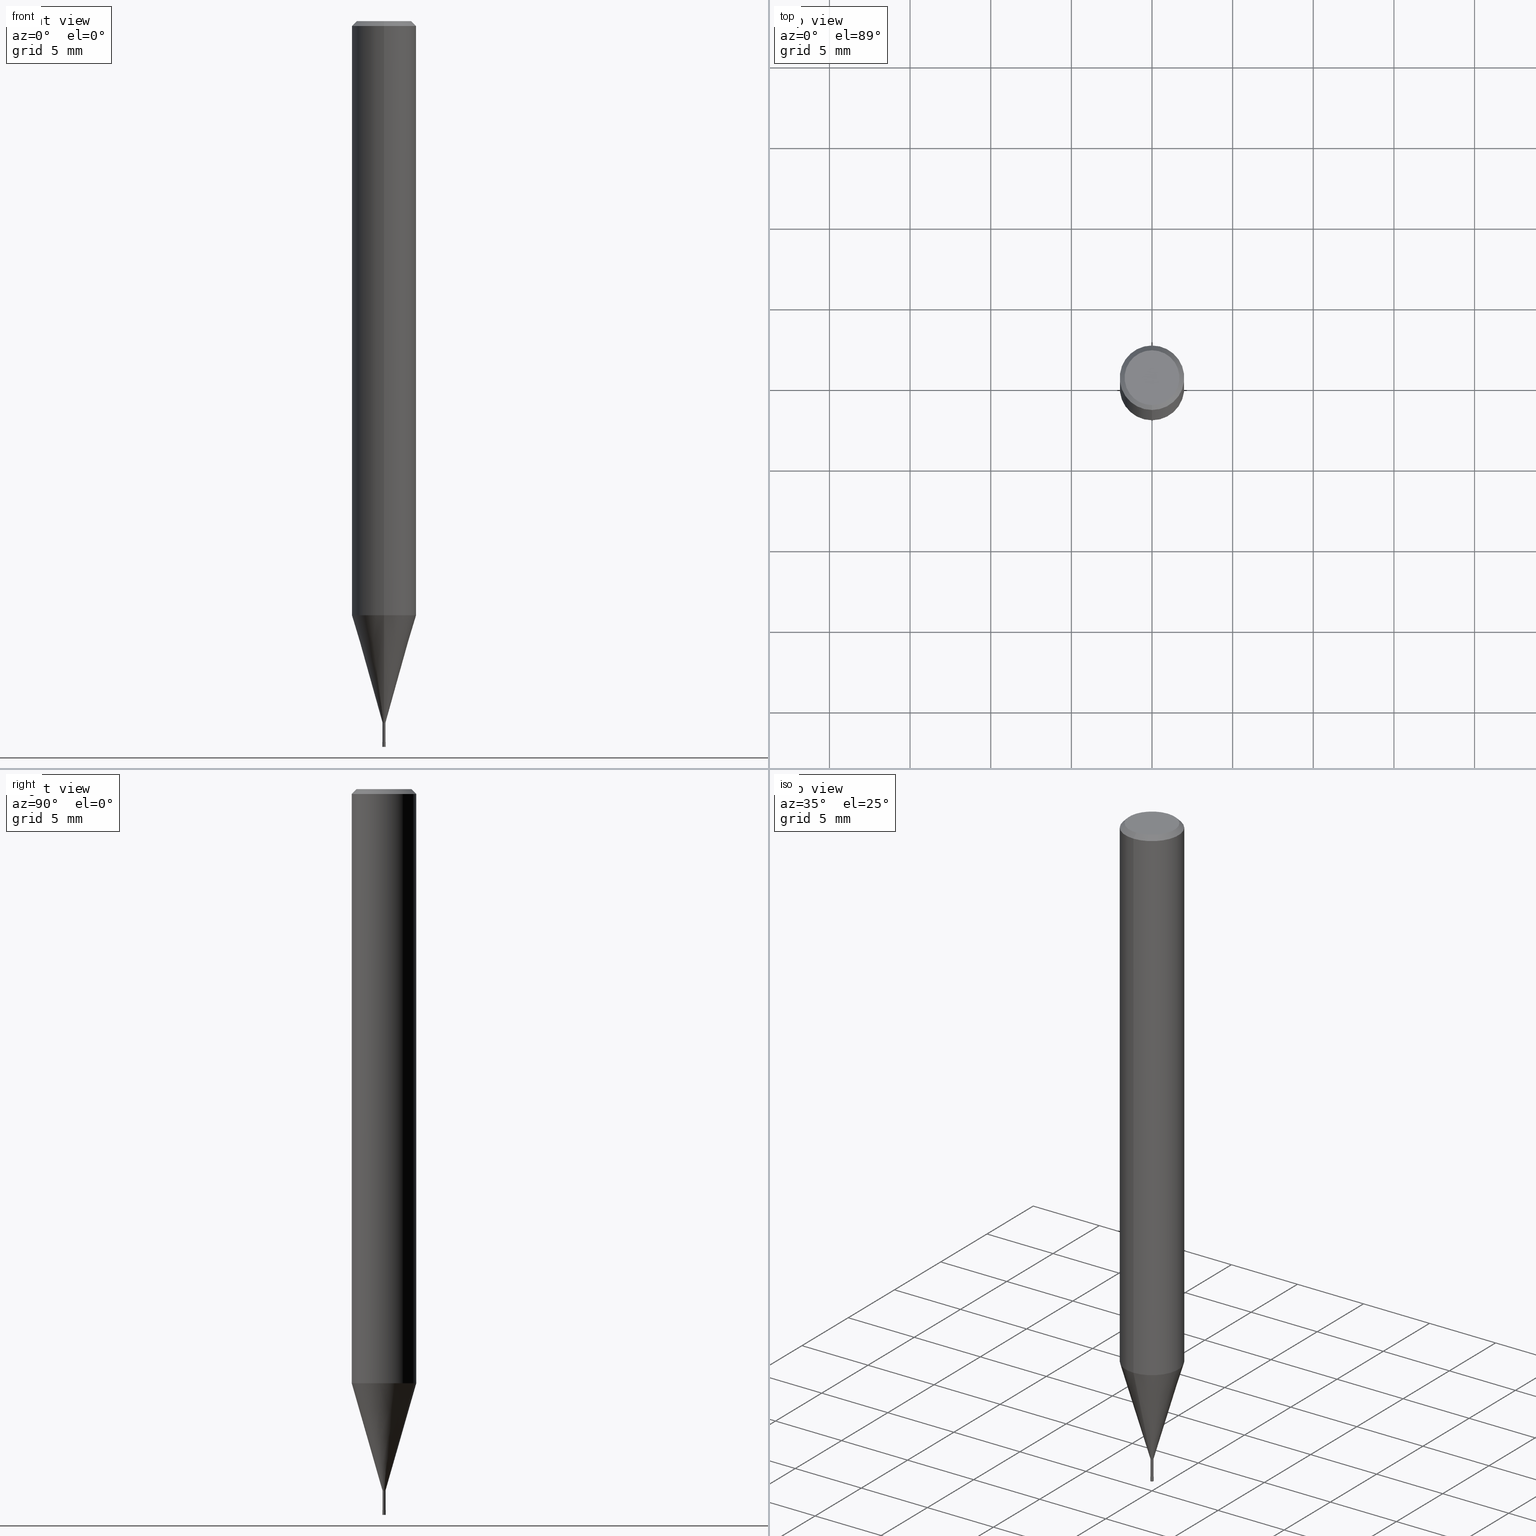
[diagram: canonical four-view strip — front | top / right | iso, engineering-drawing reading convention]
A machine part, canonical four-view strip (front | top / right | iso — engineering-drawing reading convention). The complete STEP part file that produces these views, byte-faithful:
ISO-10303-21;
HEADER;
FILE_DESCRIPTION(('no description'),'unknown implementation level');
FILE_NAME('HLS2002-015-Huellk.stp','  ',('CIMSOURCE GmbH'),('CADClick - KiM GmbH - www.kimweb.de'),'unknown preprocess','ACIS','unknown authorization');
FILE_SCHEMA(('automotive_design'));
ENDSEC;
DATA;
#1=MECHANICAL_DESIGN_GEOMETRIC_PRESENTATION_REPRESENTATION(' ',(#14,#15,#16,#17,#18,#19,#20,#21,#22,#23,#24,#25,#26,#27,#28,#29,#30,#31,#32,#33,#34,#35,#36,#37,#38,#39,#40,#41,#42,#43,#44,#45,#46,#47,#48,#49,#50,#51,#52,#53,#54,#55,#56,#57,#58,#59,#60,#61,#62,#63,#64,#65,#66,#67,#68,#69,#70,#71,#72),#10);
#2=PRODUCT_DEFINITION_CONTEXT('',#73,'design');
#3=APPLICATION_PROTOCOL_DEFINITION('INTERNATIONAL STANDARD','automotive_design',1994,#73);
#4=PRODUCT_CATEGORY_RELATIONSHIP('NONE','NONE',#74,#75);
#5=SHAPE_DEFINITION_REPRESENTATION(#76,#77);
#6=PRODUCT_DEFINITION_CONTEXT('',#78,'design');
#7=APPLICATION_PROTOCOL_DEFINITION('INTERNATIONAL STANDARD','automotive_design',1994,#78);
#8=PRODUCT_CATEGORY_RELATIONSHIP('NONE','NONE',#79,#80);
#9=SHAPE_DEFINITION_REPRESENTATION(#81,#82);
#10= (GEOMETRIC_REPRESENTATION_CONTEXT(3)GLOBAL_UNCERTAINTY_ASSIGNED_CONTEXT((#85))GLOBAL_UNIT_ASSIGNED_CONTEXT((#87,#88,#89))REPRESENTATION_CONTEXT('NONE','WORKSPACE'));
#14=STYLED_ITEM('',(#91),#92);
#15=STYLED_ITEM('',(#93),#94);
#16=STYLED_ITEM('',(#95),#96);
#17=STYLED_ITEM('',(#97),#98);
#18=STYLED_ITEM('',(#99),#100);
#19=STYLED_ITEM('',(#101),#102);
#20=STYLED_ITEM('',(#103),#104);
#21=STYLED_ITEM('',(#105),#106);
#22=STYLED_ITEM('',(#107),#108);
#23=STYLED_ITEM('',(#109),#110);
#24=STYLED_ITEM('',(#111),#112);
#25=STYLED_ITEM('',(#113),#114);
#26=STYLED_ITEM('',(#115),#116);
#27=STYLED_ITEM('',(#117),#118);
#28=STYLED_ITEM('',(#119),#120);
#29=STYLED_ITEM('',(#121),#122);
#30=STYLED_ITEM('',(#123),#124);
#31=STYLED_ITEM('',(#125),#126);
#32=STYLED_ITEM('',(#127),#128);
#33=STYLED_ITEM('',(#129),#130);
#34=STYLED_ITEM('',(#131),#132);
#35=STYLED_ITEM('',(#133),#134);
#36=STYLED_ITEM('',(#135),#136);
#37=STYLED_ITEM('',(#137),#138);
#38=STYLED_ITEM('',(#139),#140);
#39=STYLED_ITEM('',(#141),#142);
#40=STYLED_ITEM('',(#143),#144);
#41=STYLED_ITEM('',(#145),#146);
#42=STYLED_ITEM('',(#147),#148);
#43=STYLED_ITEM('',(#149),#150);
#44=STYLED_ITEM('',(#151),#152);
#45=STYLED_ITEM('',(#153),#154);
#46=STYLED_ITEM('',(#155),#156);
#47=STYLED_ITEM('',(#157),#158);
#48=STYLED_ITEM('',(#159),#160);
#49=STYLED_ITEM('',(#161),#162);
#50=STYLED_ITEM('',(#163),#164);
#51=STYLED_ITEM('',(#165),#166);
#52=STYLED_ITEM('',(#167),#168);
#53=STYLED_ITEM('',(#169),#170);
#54=STYLED_ITEM('',(#171),#172);
#55=STYLED_ITEM('',(#173),#174);
#56=STYLED_ITEM('',(#175),#176);
#57=STYLED_ITEM('',(#177),#178);
#58=STYLED_ITEM('',(#179),#180);
#59=STYLED_ITEM('',(#181),#182);
#60=STYLED_ITEM('',(#183),#184);
#61=STYLED_ITEM('',(#185),#186);
#62=STYLED_ITEM('',(#187),#188);
#63=STYLED_ITEM('',(#189),#190);
#64=STYLED_ITEM('',(#191),#192);
#65=STYLED_ITEM('',(#193),#194);
#66=STYLED_ITEM('',(#195),#196);
#67=STYLED_ITEM('',(#197),#198);
#68=STYLED_ITEM('',(#199),#200);
#69=STYLED_ITEM('',(#201),#202);
#70=STYLED_ITEM('',(#203),#204);
#71=STYLED_ITEM('',(#205),#206);
#72=STYLED_ITEM('',(#207),#208);
#73=APPLICATION_CONTEXT(' ');
#74=PRODUCT_CATEGORY('part','NONE');
#75=PRODUCT_RELATED_PRODUCT_CATEGORY('detail',' ',(#209));
#76=PRODUCT_DEFINITION_SHAPE('NONE','NONE',#210);
#77=ADVANCED_BREP_SHAPE_REPRESENTATION('1',(#136,#211),#10);
#78=APPLICATION_CONTEXT(' ');
#79=PRODUCT_CATEGORY('part','NONE');
#80=PRODUCT_RELATED_PRODUCT_CATEGORY('detail',' ',(#212));
#81=PRODUCT_DEFINITION_SHAPE('NONE','NONE',#213);
#82=ADVANCED_BREP_SHAPE_REPRESENTATION('2',(#200,#214),#10);
#85=UNCERTAINTY_MEASURE_WITH_UNIT(LENGTH_MEASURE(1.0E-006),#87,'','');
#87= (CONVERSION_BASED_UNIT('MILLIMETRE',#217)LENGTH_UNIT()NAMED_UNIT(#220));
#88= (NAMED_UNIT(#222)PLANE_ANGLE_UNIT()SI_UNIT($,.RADIAN.));
#89= (NAMED_UNIT(#222)SOLID_ANGLE_UNIT()SI_UNIT($,.STERADIAN.));
#91=PRESENTATION_STYLE_ASSIGNMENT((#228));
#92=EDGE_CURVE('',#146,#114,#229,.T.);
#93=PRESENTATION_STYLE_ASSIGNMENT((#230));
#94=EDGE_CURVE('',#138,#204,#231,.T.);
#95=PRESENTATION_STYLE_ASSIGNMENT((#232));
#96=EDGE_CURVE('',#184,#102,#233,.T.);
#97=PRESENTATION_STYLE_ASSIGNMENT((#234));
#98=ADVANCED_FACE('',(#235,#236),#237,.T.);
#99=PRESENTATION_STYLE_ASSIGNMENT((#238));
#100=EDGE_CURVE('',#156,#130,#239,.T.);
#101=PRESENTATION_STYLE_ASSIGNMENT((#240));
#102=VERTEX_POINT('',#241);
#103=PRESENTATION_STYLE_ASSIGNMENT((#242));
#104=EDGE_CURVE('',#156,#178,#243,.T.);
#105=PRESENTATION_STYLE_ASSIGNMENT((#244));
#106=EDGE_CURVE('',#204,#138,#245,.T.);
#107=PRESENTATION_STYLE_ASSIGNMENT((#246));
#108=ADVANCED_FACE('',(#247),#248,.T.);
#109=PRESENTATION_STYLE_ASSIGNMENT((#249));
#110=EDGE_CURVE('',#138,#126,#250,.T.);
#111=PRESENTATION_STYLE_ASSIGNMENT((#251));
#112=EDGE_CURVE('',#168,#114,#252,.T.);
#113=PRESENTATION_STYLE_ASSIGNMENT((#253));
#114=VERTEX_POINT('',#254);
#115=PRESENTATION_STYLE_ASSIGNMENT((#255));
#116=EDGE_CURVE('',#170,#150,#256,.T.);
#117=PRESENTATION_STYLE_ASSIGNMENT((#257));
#118=ADVANCED_FACE('',(#258),#259,.T.);
#119=PRESENTATION_STYLE_ASSIGNMENT((#260));
#120=EDGE_CURVE('',#208,#178,#261,.T.);
#121=PRESENTATION_STYLE_ASSIGNMENT((#262));
#122=ADVANCED_FACE('',(#263),#264,.T.);
#123=PRESENTATION_STYLE_ASSIGNMENT((#265));
#124=EDGE_CURVE('',#150,#170,#266,.T.);
#125=PRESENTATION_STYLE_ASSIGNMENT((#267));
#126=VERTEX_POINT('',#268);
#127=PRESENTATION_STYLE_ASSIGNMENT((#269));
#128=EDGE_CURVE('',#146,#202,#270,.T.);
#129=PRESENTATION_STYLE_ASSIGNMENT((#271));
#130=VERTEX_POINT('',#272);
#131=PRESENTATION_STYLE_ASSIGNMENT((#273));
#132=EDGE_CURVE('',#130,#156,#274,.T.);
#133=PRESENTATION_STYLE_ASSIGNMENT((#275));
#134=EDGE_CURVE('',#114,#146,#276,.T.);
#135=PRESENTATION_STYLE_ASSIGNMENT((#277));
#136=MANIFOLD_SOLID_BREP('1',#278);
#137=PRESENTATION_STYLE_ASSIGNMENT((#279));
#138=VERTEX_POINT('',#280);
#139=PRESENTATION_STYLE_ASSIGNMENT((#281));
#140=ADVANCED_FACE('',(#282),#283,.T.);
#141=PRESENTATION_STYLE_ASSIGNMENT((#284));
#142=ADVANCED_FACE('',(#285),#286,.T.);
#143=PRESENTATION_STYLE_ASSIGNMENT((#287));
#144=ADVANCED_FACE('',(#288),#289,.T.);
#145=PRESENTATION_STYLE_ASSIGNMENT((#290));
#146=VERTEX_POINT('',#291);
#147=PRESENTATION_STYLE_ASSIGNMENT((#292));
#148=ADVANCED_FACE('',(#293),#294,.T.);
#149=PRESENTATION_STYLE_ASSIGNMENT((#295));
#150=VERTEX_POINT('',#296);
#151=PRESENTATION_STYLE_ASSIGNMENT((#297));
#152=EDGE_CURVE('',#194,#126,#298,.T.);
#153=PRESENTATION_STYLE_ASSIGNMENT((#299));
#154=EDGE_CURVE('',#130,#170,#300,.T.);
#155=PRESENTATION_STYLE_ASSIGNMENT((#301));
#156=VERTEX_POINT('',#302);
#157=PRESENTATION_STYLE_ASSIGNMENT((#303));
#158=EDGE_CURVE('',#168,#202,#304,.T.);
#159=PRESENTATION_STYLE_ASSIGNMENT((#305));
#160=ADVANCED_FACE('',(#306),#307,.T.);
#161=PRESENTATION_STYLE_ASSIGNMENT((#308));
#162=EDGE_CURVE('',#102,#184,#309,.T.);
#163=PRESENTATION_STYLE_ASSIGNMENT((#310));
#164=EDGE_CURVE('',#204,#102,#311,.T.);
#165=PRESENTATION_STYLE_ASSIGNMENT((#312));
#166=ADVANCED_FACE('',(#313),#314,.T.);
#167=PRESENTATION_STYLE_ASSIGNMENT((#315));
#168=VERTEX_POINT('',#316);
#169=PRESENTATION_STYLE_ASSIGNMENT((#317));
#170=VERTEX_POINT('',#318);
#171=PRESENTATION_STYLE_ASSIGNMENT((#319));
#172=EDGE_CURVE('',#126,#194,#320,.T.);
#173=PRESENTATION_STYLE_ASSIGNMENT((#321));
#174=ADVANCED_FACE('',(#322),#323,.T.);
#175=PRESENTATION_STYLE_ASSIGNMENT((#324));
#176=EDGE_CURVE('',#202,#168,#325,.T.);
#177=PRESENTATION_STYLE_ASSIGNMENT((#326));
#178=VERTEX_POINT('',#327);
#179=PRESENTATION_STYLE_ASSIGNMENT((#328));
#180=ADVANCED_FACE('',(#329),#330,.T.);
#181=PRESENTATION_STYLE_ASSIGNMENT((#331));
#182=EDGE_CURVE('',#194,#204,#332,.T.);
#183=PRESENTATION_STYLE_ASSIGNMENT((#333));
#184=VERTEX_POINT('',#334);
#185=PRESENTATION_STYLE_ASSIGNMENT((#335));
#186=ADVANCED_FACE('',(#336),#337,.T.);
#187=PRESENTATION_STYLE_ASSIGNMENT((#338));
#188=ADVANCED_FACE('',(#339),#340,.T.);
#189=PRESENTATION_STYLE_ASSIGNMENT((#341));
#190=EDGE_CURVE('',#184,#138,#342,.T.);
#191=PRESENTATION_STYLE_ASSIGNMENT((#343));
#192=EDGE_CURVE('',#178,#208,#344,.T.);
#193=PRESENTATION_STYLE_ASSIGNMENT((#345));
#194=VERTEX_POINT('',#346);
#195=PRESENTATION_STYLE_ASSIGNMENT((#347));
#196=EDGE_CURVE('',#208,#130,#348,.T.);
#197=PRESENTATION_STYLE_ASSIGNMENT((#349));
#198=ADVANCED_FACE('',(#350),#351,.T.);
#199=PRESENTATION_STYLE_ASSIGNMENT((#352));
#200=MANIFOLD_SOLID_BREP('2',#353);
#201=PRESENTATION_STYLE_ASSIGNMENT((#354));
#202=VERTEX_POINT('',#355);
#203=PRESENTATION_STYLE_ASSIGNMENT((#356));
#204=VERTEX_POINT('',#357);
#205=PRESENTATION_STYLE_ASSIGNMENT((#358));
#206=EDGE_CURVE('',#150,#156,#359,.T.);
#207=PRESENTATION_STYLE_ASSIGNMENT((#360));
#208=VERTEX_POINT('',#361);
#209=PRODUCT('1','1','PART-1-DESC',(#362));
#210=PRODUCT_DEFINITION('NONE','NONE',#363,#2);
#211=AXIS2_PLACEMENT_3D('',#364,#365,#366);
#212=PRODUCT('2','2','PART-2-DESC',(#367));
#213=PRODUCT_DEFINITION('NONE','NONE',#368,#6);
#214=AXIS2_PLACEMENT_3D('',#369,#370,#371);
#217=LENGTH_MEASURE_WITH_UNIT(LENGTH_MEASURE(1.0),#372);
#220=DIMENSIONAL_EXPONENTS(1.0,0.0,0.0,0.0,0.0,0.0,0.0);
#222=DIMENSIONAL_EXPONENTS(0.0,0.0,0.0,0.0,0.0,0.0,0.0);
#228=CURVE_STYLE('',#373,POSITIVE_LENGTH_MEASURE(1.0E-006),#374);
#229=CIRCLE('',#375,0.1);
#230=CURVE_STYLE('',#376,POSITIVE_LENGTH_MEASURE(1.0E-006),#377);
#231=CIRCLE('',#378,2.0);
#232=CURVE_STYLE('',#379,POSITIVE_LENGTH_MEASURE(1.0E-006),#380);
#233=CIRCLE('',#381,1.7);
#234=SURFACE_STYLE_USAGE(.BOTH.,#382);
#235=FACE_OUTER_BOUND('',#383,.T.);
#236=FACE_BOUND('',#384,.T.);
#237=PLANE('',#385);
#238=CURVE_STYLE('',#386,POSITIVE_LENGTH_MEASURE(1.0E-006),#387);
#239=CIRCLE('',#388,0.08995);
#240=POINT_STYLE(' ',#389,POSITIVE_LENGTH_MEASURE(1.0E-006),#390);
#241=CARTESIAN_POINT('',(2.08183080149804E-016,-1.7,0.0));
#242=CURVE_STYLE('',#391,POSITIVE_LENGTH_MEASURE(1.0E-006),#392);
#243=LINE('',#393,#394);
#244=CURVE_STYLE('',#395,POSITIVE_LENGTH_MEASURE(1.0E-006),#396);
#245=CIRCLE('',#397,2.0);
#246=SURFACE_STYLE_USAGE(.BOTH.,#398);
#247=FACE_OUTER_BOUND('',#399,.T.);
#248=PLANE('',#400);
#249=CURVE_STYLE('',#401,POSITIVE_LENGTH_MEASURE(1.0E-006),#402);
#250=LINE('',#403,#404);
#251=CURVE_STYLE('',#405,POSITIVE_LENGTH_MEASURE(1.0E-006),#406);
#252=LINE('',#407,#408);
#253=POINT_STYLE(' ',#409,POSITIVE_LENGTH_MEASURE(1.0E-006),#410);
#254=CARTESIAN_POINT('',(0.0,0.1,-45.0));
#255=CURVE_STYLE('',#411,POSITIVE_LENGTH_MEASURE(1.0E-006),#412);
#256=CIRCLE('',#413,0.08995);
#257=SURFACE_STYLE_USAGE(.BOTH.,#414);
#258=FACE_OUTER_BOUND('',#415,.T.);
#259=CONICAL_SURFACE('',#416,1.04495,0.279251152364767);
#260=CURVE_STYLE('',#417,POSITIVE_LENGTH_MEASURE(1.0E-006),#418);
#261=CIRCLE('',#419,1.99995);
#262=SURFACE_STYLE_USAGE(.BOTH.,#420);
#263=FACE_OUTER_BOUND('',#421,.T.);
#264=CONICAL_SURFACE('',#422,1.85,0.785398163397453);
#265=CURVE_STYLE('',#423,POSITIVE_LENGTH_MEASURE(1.0E-006),#424);
#266=CIRCLE('',#425,0.08995);
#267=POINT_STYLE(' ',#426,POSITIVE_LENGTH_MEASURE(1.0E-006),#427);
#268=CARTESIAN_POINT('',(0.0,2.0,-36.839));
#269=CURVE_STYLE('',#428,POSITIVE_LENGTH_MEASURE(1.0E-006),#429);
#270=LINE('',#430,#431);
#271=POINT_STYLE(' ',#432,POSITIVE_LENGTH_MEASURE(1.0E-006),#433);
#272=CARTESIAN_POINT('',(0.0,0.08995,-43.5));
#273=CURVE_STYLE('',#434,POSITIVE_LENGTH_MEASURE(1.0E-006),#435);
#274=CIRCLE('',#436,0.08995);
#275=CURVE_STYLE('',#437,POSITIVE_LENGTH_MEASURE(1.0E-006),#438);
#276=CIRCLE('',#439,0.1);
#277=SURFACE_STYLE_USAGE(.BOTH.,#440);
#278=CLOSED_SHELL('',(#142,#140,#188,#122,#98,#180,#160,#144,#118,#166,#198));
#279=POINT_STYLE(' ',#441,POSITIVE_LENGTH_MEASURE(1.0E-006),#442);
#280=CARTESIAN_POINT('',(0.0,2.0,-0.299999999999997));
#281=SURFACE_STYLE_USAGE(.BOTH.,#443);
#282=FACE_OUTER_BOUND('',#444,.T.);
#283=CONICAL_SURFACE('',#445,1.04495,0.279251152364767);
#284=SURFACE_STYLE_USAGE(.BOTH.,#446);
#285=FACE_OUTER_BOUND('',#447,.T.);
#286=CYLINDRICAL_SURFACE('',#448,0.08995);
#287=SURFACE_STYLE_USAGE(.BOTH.,#449);
#288=FACE_OUTER_BOUND('',#450,.T.);
#289=CYLINDRICAL_SURFACE('',#451,2.0);
#290=POINT_STYLE(' ',#452,POSITIVE_LENGTH_MEASURE(1.0E-006),#453);
#291=CARTESIAN_POINT('',(1.22460635382238E-017,-0.1,-45.0));
#292=SURFACE_STYLE_USAGE(.BOTH.,#454);
#293=FACE_OUTER_BOUND('',#455,.T.);
#294=PLANE('',#456);
#295=POINT_STYLE(' ',#457,POSITIVE_LENGTH_MEASURE(1.0E-006),#458);
#296=CARTESIAN_POINT('',(1.10153341526323E-017,-0.08995,-44.7));
#297=CURVE_STYLE('',#459,POSITIVE_LENGTH_MEASURE(1.0E-006),#460);
#298=CIRCLE('',#461,2.0);
#299=CURVE_STYLE('',#462,POSITIVE_LENGTH_MEASURE(1.0E-006),#463);
#300=LINE('',#464,#465);
#301=POINT_STYLE(' ',#466,POSITIVE_LENGTH_MEASURE(1.0E-006),#467);
#302=CARTESIAN_POINT('',(1.10153341526323E-017,-0.08995,-43.5));
#303=CURVE_STYLE('',#468,POSITIVE_LENGTH_MEASURE(1.0E-006),#469);
#304=CIRCLE('',#470,0.0999);
#305=SURFACE_STYLE_USAGE(.BOTH.,#471);
#306=FACE_OUTER_BOUND('',#472,.T.);
#307=CONICAL_SURFACE('',#473,1.85,0.785398163397453);
#308=CURVE_STYLE('',#474,POSITIVE_LENGTH_MEASURE(1.0E-006),#475);
#309=CIRCLE('',#476,1.7);
#310=CURVE_STYLE('',#477,POSITIVE_LENGTH_MEASURE(1.0E-006),#478);
#311=LINE('',#479,#480);
#312=SURFACE_STYLE_USAGE(.BOTH.,#481);
#313=FACE_OUTER_BOUND('',#482,.T.);
#314=CYLINDRICAL_SURFACE('',#483,0.08995);
#315=POINT_STYLE(' ',#484,POSITIVE_LENGTH_MEASURE(1.0E-006),#485);
#316=CARTESIAN_POINT('',(0.0,0.0999,-44.7));
#317=POINT_STYLE(' ',#486,POSITIVE_LENGTH_MEASURE(1.0E-006),#487);
#318=CARTESIAN_POINT('',(0.0,0.08995,-44.7));
#319=CURVE_STYLE('',#488,POSITIVE_LENGTH_MEASURE(1.0E-006),#489);
#320=CIRCLE('',#490,2.0);
#321=SURFACE_STYLE_USAGE(.BOTH.,#491);
#322=FACE_OUTER_BOUND('',#492,.T.);
#323=CONICAL_SURFACE('',#493,0.09995,0.000333333320987665);
#324=CURVE_STYLE('',#494,POSITIVE_LENGTH_MEASURE(1.0E-006),#495);
#325=CIRCLE('',#496,0.0999);
#326=POINT_STYLE(' ',#497,POSITIVE_LENGTH_MEASURE(1.0E-006),#498);
#327=CARTESIAN_POINT('',(2.44915147732706E-016,-1.99995,-36.839));
#328=SURFACE_STYLE_USAGE(.BOTH.,#499);
#329=FACE_OUTER_BOUND('',#500,.T.);
#330=PLANE('',#501);
#331=CURVE_STYLE('',#502,POSITIVE_LENGTH_MEASURE(1.0E-006),#503);
#332=LINE('',#504,#505);
#333=POINT_STYLE(' ',#506,POSITIVE_LENGTH_MEASURE(1.0E-006),#507);
#334=CARTESIAN_POINT('',(0.0,1.7,0.0));
#335=SURFACE_STYLE_USAGE(.BOTH.,#508);
#336=FACE_OUTER_BOUND('',#509,.T.);
#337=CONICAL_SURFACE('',#510,0.09995,0.000333333320987665);
#338=SURFACE_STYLE_USAGE(.BOTH.,#511);
#339=FACE_OUTER_BOUND('',#512,.T.);
#340=CYLINDRICAL_SURFACE('',#513,2.0);
#341=CURVE_STYLE('',#514,POSITIVE_LENGTH_MEASURE(1.0E-006),#515);
#342=LINE('',#516,#517);
#343=CURVE_STYLE('',#518,POSITIVE_LENGTH_MEASURE(1.0E-006),#519);
#344=CIRCLE('',#520,1.99995);
#345=POINT_STYLE(' ',#521,POSITIVE_LENGTH_MEASURE(1.0E-006),#522);
#346=CARTESIAN_POINT('',(2.44921270764475E-016,-2.0,-36.839));
#347=CURVE_STYLE('',#523,POSITIVE_LENGTH_MEASURE(1.0E-006),#524);
#348=LINE('',#525,#526);
#349=SURFACE_STYLE_USAGE(.BOTH.,#527);
#350=FACE_OUTER_BOUND('',#528,.T.);
#351=PLANE('',#529);
#352=SURFACE_STYLE_USAGE(.BOTH.,#530);
#353=CLOSED_SHELL('',(#186,#148,#174,#108));
#354=POINT_STYLE(' ',#531,POSITIVE_LENGTH_MEASURE(1.0E-006),#532);
#355=CARTESIAN_POINT('',(1.22338174746855E-017,-0.0999,-44.7));
#356=POINT_STYLE(' ',#533,POSITIVE_LENGTH_MEASURE(1.0E-006),#534);
#357=CARTESIAN_POINT('',(2.44921270764475E-016,-2.0,-0.299999999999997));
#358=CURVE_STYLE('',#535,POSITIVE_LENGTH_MEASURE(1.0E-006),#536);
#359=LINE('',#537,#538);
#360=POINT_STYLE(' ',#539,POSITIVE_LENGTH_MEASURE(1.0E-006),#540);
#361=CARTESIAN_POINT('',(0.0,1.99995,-36.839));
#362=PRODUCT_CONTEXT('',#73,'mechanical');
#363=PRODUCT_DEFINITION_FORMATION_WITH_SPECIFIED_SOURCE(' ','NONE',#209,.NOT_KNOWN.);
#364=CARTESIAN_POINT('',(0.0,0.0,0.0));
#365=DIRECTION('',(0.0,0.0,1.0));
#366=DIRECTION('',(1.0,0.0,0.0));
#367=PRODUCT_CONTEXT('',#78,'mechanical');
#368=PRODUCT_DEFINITION_FORMATION_WITH_SPECIFIED_SOURCE(' ','NONE',#212,.NOT_KNOWN.);
#369=CARTESIAN_POINT('',(0.0,0.0,0.0));
#370=DIRECTION('',(0.0,0.0,1.0));
#371=DIRECTION('',(1.0,0.0,0.0));
#372= (NAMED_UNIT(#220)LENGTH_UNIT()SI_UNIT(.MILLI.,.METRE.));
#373=DRAUGHTING_PRE_DEFINED_CURVE_FONT('continuous');
#374=COLOUR_RGB('',0.800000011920929,0.800000011920929,0.800000011920929);
#375=AXIS2_PLACEMENT_3D('',#542,#543,#544);
#376=DRAUGHTING_PRE_DEFINED_CURVE_FONT('continuous');
#377=COLOUR_RGB('',0.498039215803146,0.498039215803146,0.498039215803146);
#378=AXIS2_PLACEMENT_3D('',#545,#546,#547);
#379=DRAUGHTING_PRE_DEFINED_CURVE_FONT('continuous');
#380=COLOUR_RGB('',0.498039215803146,0.498039215803146,0.498039215803146);
#381=AXIS2_PLACEMENT_3D('',#548,#549,#550);
#382=SURFACE_SIDE_STYLE('',(#551));
#383=EDGE_LOOP('',(#552,#553));
#384=EDGE_LOOP('',(#554,#555));
#385=AXIS2_PLACEMENT_3D('',#556,#557,#558);
#386=DRAUGHTING_PRE_DEFINED_CURVE_FONT('continuous');
#387=COLOUR_RGB('',0.498039215803146,0.498039215803146,0.498039215803146);
#388=AXIS2_PLACEMENT_3D('',#559,#560,#561);
#389=PRE_DEFINED_MARKER('');
#390=COLOUR_RGB('',0.498039215803146,0.498039215803146,0.498039215803146);
#391=DRAUGHTING_PRE_DEFINED_CURVE_FONT('continuous');
#392=COLOUR_RGB('',0.498039215803146,0.498039215803146,0.498039215803146);
#393=CARTESIAN_POINT('',(1.27965240942669E-016,-1.04495,-40.1695));
#394=VECTOR('',#562,1.0);
#395=DRAUGHTING_PRE_DEFINED_CURVE_FONT('continuous');
#396=COLOUR_RGB('',0.498039215803146,0.498039215803146,0.498039215803146);
#397=AXIS2_PLACEMENT_3D('',#563,#564,#565);
#398=SURFACE_SIDE_STYLE('',(#566));
#399=EDGE_LOOP('',(#567,#568));
#400=AXIS2_PLACEMENT_3D('',#569,#570,#571);
#401=DRAUGHTING_PRE_DEFINED_CURVE_FONT('continuous');
#402=COLOUR_RGB('',0.498039215803146,0.498039215803146,0.498039215803146);
#403=CARTESIAN_POINT('',(-2.44921270764475E-016,2.0,-18.5695));
#404=VECTOR('',#572,1.0);
#405=DRAUGHTING_PRE_DEFINED_CURVE_FONT('continuous');
#406=COLOUR_RGB('',0.800000011920929,0.800000011920929,0.800000011920929);
#407=CARTESIAN_POINT('',(-1.22399405064547E-017,0.09995,-44.85));
#408=VECTOR('',#573,1.0);
#409=PRE_DEFINED_MARKER('');
#410=COLOUR_RGB('',0.800000011920929,0.800000011920929,0.800000011920929);
#411=DRAUGHTING_PRE_DEFINED_CURVE_FONT('continuous');
#412=COLOUR_RGB('',0.498039215803146,0.498039215803146,0.498039215803146);
#413=AXIS2_PLACEMENT_3D('',#574,#575,#576);
#414=SURFACE_SIDE_STYLE('',(#577));
#415=EDGE_LOOP('',(#578,#579,#580,#581));
#416=AXIS2_PLACEMENT_3D('',#582,#583,#584);
#417=DRAUGHTING_PRE_DEFINED_CURVE_FONT('continuous');
#418=COLOUR_RGB('',0.498039215803146,0.498039215803146,0.498039215803146);
#419=AXIS2_PLACEMENT_3D('',#585,#586,#587);
#420=SURFACE_SIDE_STYLE('',(#588));
#421=EDGE_LOOP('',(#589,#590,#591,#592));
#422=AXIS2_PLACEMENT_3D('',#593,#594,#595);
#423=DRAUGHTING_PRE_DEFINED_CURVE_FONT('continuous');
#424=COLOUR_RGB('',0.498039215803146,0.498039215803146,0.498039215803146);
#425=AXIS2_PLACEMENT_3D('',#596,#597,#598);
#426=PRE_DEFINED_MARKER('');
#427=COLOUR_RGB('',0.498039215803146,0.498039215803146,0.498039215803146);
#428=DRAUGHTING_PRE_DEFINED_CURVE_FONT('continuous');
#429=COLOUR_RGB('',0.800000011920929,0.800000011920929,0.800000011920929);
#430=CARTESIAN_POINT('',(1.22399405064547E-017,-0.09995,-44.85));
#431=VECTOR('',#599,1.0);
#432=PRE_DEFINED_MARKER('');
#433=COLOUR_RGB('',0.498039215803146,0.498039215803146,0.498039215803146);
#434=DRAUGHTING_PRE_DEFINED_CURVE_FONT('continuous');
#435=COLOUR_RGB('',0.498039215803146,0.498039215803146,0.498039215803146);
#436=AXIS2_PLACEMENT_3D('',#600,#601,#602);
#437=DRAUGHTING_PRE_DEFINED_CURVE_FONT('continuous');
#438=COLOUR_RGB('',0.800000011920929,0.800000011920929,0.800000011920929);
#439=AXIS2_PLACEMENT_3D('',#603,#604,#605);
#440=SURFACE_SIDE_STYLE('',(#606));
#441=PRE_DEFINED_MARKER('');
#442=COLOUR_RGB('',0.498039215803146,0.498039215803146,0.498039215803146);
#443=SURFACE_SIDE_STYLE('',(#607));
#444=EDGE_LOOP('',(#608,#609,#610,#611));
#445=AXIS2_PLACEMENT_3D('',#612,#613,#614);
#446=SURFACE_SIDE_STYLE('',(#615));
#447=EDGE_LOOP('',(#616,#617,#618,#619));
#448=AXIS2_PLACEMENT_3D('',#620,#621,#622);
#449=SURFACE_SIDE_STYLE('',(#623));
#450=EDGE_LOOP('',(#624,#625,#626,#627));
#451=AXIS2_PLACEMENT_3D('',#628,#629,#630);
#452=PRE_DEFINED_MARKER('');
#453=COLOUR_RGB('',0.800000011920929,0.800000011920929,0.800000011920929);
#454=SURFACE_SIDE_STYLE('',(#631));
#455=EDGE_LOOP('',(#632,#633));
#456=AXIS2_PLACEMENT_3D('',#634,#635,#636);
#457=PRE_DEFINED_MARKER('');
#458=COLOUR_RGB('',0.498039215803146,0.498039215803146,0.498039215803146);
#459=DRAUGHTING_PRE_DEFINED_CURVE_FONT('continuous');
#460=COLOUR_RGB('',0.498039215803146,0.498039215803146,0.498039215803146);
#461=AXIS2_PLACEMENT_3D('',#637,#638,#639);
#462=DRAUGHTING_PRE_DEFINED_CURVE_FONT('continuous');
#463=COLOUR_RGB('',0.498039215803146,0.498039215803146,0.498039215803146);
#464=CARTESIAN_POINT('',(-1.10153341526323E-017,0.08995,-44.1));
#465=VECTOR('',#640,1.0);
#466=PRE_DEFINED_MARKER('');
#467=COLOUR_RGB('',0.498039215803146,0.498039215803146,0.498039215803146);
#468=DRAUGHTING_PRE_DEFINED_CURVE_FONT('continuous');
#469=COLOUR_RGB('',0.800000011920929,0.800000011920929,0.800000011920929);
#470=AXIS2_PLACEMENT_3D('',#641,#642,#643);
#471=SURFACE_SIDE_STYLE('',(#644));
#472=EDGE_LOOP('',(#645,#646,#647,#648));
#473=AXIS2_PLACEMENT_3D('',#649,#650,#651);
#474=DRAUGHTING_PRE_DEFINED_CURVE_FONT('continuous');
#475=COLOUR_RGB('',0.498039215803146,0.498039215803146,0.498039215803146);
#476=AXIS2_PLACEMENT_3D('',#652,#653,#654);
#477=DRAUGHTING_PRE_DEFINED_CURVE_FONT('continuous');
#478=COLOUR_RGB('',0.498039215803146,0.498039215803146,0.498039215803146);
#479=CARTESIAN_POINT('',(2.2655217545714E-016,-1.85,-0.149999999999999));
#480=VECTOR('',#655,1.0);
#481=SURFACE_SIDE_STYLE('',(#656));
#482=EDGE_LOOP('',(#657,#658,#659,#660));
#483=AXIS2_PLACEMENT_3D('',#661,#662,#663);
#484=PRE_DEFINED_MARKER('');
#485=COLOUR_RGB('',0.800000011920929,0.800000011920929,0.800000011920929);
#486=PRE_DEFINED_MARKER('');
#487=COLOUR_RGB('',0.498039215803146,0.498039215803146,0.498039215803146);
#488=DRAUGHTING_PRE_DEFINED_CURVE_FONT('continuous');
#489=COLOUR_RGB('',0.498039215803146,0.498039215803146,0.498039215803146);
#490=AXIS2_PLACEMENT_3D('',#664,#665,#666);
#491=SURFACE_SIDE_STYLE('',(#667));
#492=EDGE_LOOP('',(#668,#669,#670,#671));
#493=AXIS2_PLACEMENT_3D('',#672,#673,#674);
#494=DRAUGHTING_PRE_DEFINED_CURVE_FONT('continuous');
#495=COLOUR_RGB('',0.800000011920929,0.800000011920929,0.800000011920929);
#496=AXIS2_PLACEMENT_3D('',#675,#676,#677);
#497=PRE_DEFINED_MARKER('');
#498=COLOUR_RGB('',0.498039215803146,0.498039215803146,0.498039215803146);
#499=SURFACE_SIDE_STYLE('',(#678));
#500=EDGE_LOOP('',(#679,#680));
#501=AXIS2_PLACEMENT_3D('',#681,#682,#683);
#502=DRAUGHTING_PRE_DEFINED_CURVE_FONT('continuous');
#503=COLOUR_RGB('',0.498039215803146,0.498039215803146,0.498039215803146);
#504=CARTESIAN_POINT('',(2.44921270764475E-016,-2.0,-18.5695));
#505=VECTOR('',#684,1.0);
#506=PRE_DEFINED_MARKER('');
#507=COLOUR_RGB('',0.498039215803146,0.498039215803146,0.498039215803146);
#508=SURFACE_SIDE_STYLE('',(#685));
#509=EDGE_LOOP('',(#686,#687,#688,#689));
#510=AXIS2_PLACEMENT_3D('',#690,#691,#692);
#511=SURFACE_SIDE_STYLE('',(#693));
#512=EDGE_LOOP('',(#694,#695,#696,#697));
#513=AXIS2_PLACEMENT_3D('',#698,#699,#700);
#514=DRAUGHTING_PRE_DEFINED_CURVE_FONT('continuous');
#515=COLOUR_RGB('',0.498039215803146,0.498039215803146,0.498039215803146);
#516=CARTESIAN_POINT('',(-2.2655217545714E-016,1.85,-0.149999999999999));
#517=VECTOR('',#701,1.0);
#518=DRAUGHTING_PRE_DEFINED_CURVE_FONT('continuous');
#519=COLOUR_RGB('',0.498039215803146,0.498039215803146,0.498039215803146);
#520=AXIS2_PLACEMENT_3D('',#702,#703,#704);
#521=PRE_DEFINED_MARKER('');
#522=COLOUR_RGB('',0.498039215803146,0.498039215803146,0.498039215803146);
#523=DRAUGHTING_PRE_DEFINED_CURVE_FONT('continuous');
#524=COLOUR_RGB('',0.498039215803146,0.498039215803146,0.498039215803146);
#525=CARTESIAN_POINT('',(-1.27965240942669E-016,1.04495,-40.1695));
#526=VECTOR('',#705,1.0);
#527=SURFACE_SIDE_STYLE('',(#706));
#528=EDGE_LOOP('',(#707,#708));
#529=AXIS2_PLACEMENT_3D('',#709,#710,#711);
#530=SURFACE_SIDE_STYLE('',(#712));
#531=PRE_DEFINED_MARKER('');
#532=COLOUR_RGB('',0.800000011920929,0.800000011920929,0.800000011920929);
#533=PRE_DEFINED_MARKER('');
#534=COLOUR_RGB('',0.498039215803146,0.498039215803146,0.498039215803146);
#535=DRAUGHTING_PRE_DEFINED_CURVE_FONT('continuous');
#536=COLOUR_RGB('',0.498039215803146,0.498039215803146,0.498039215803146);
#537=CARTESIAN_POINT('',(1.10153341526323E-017,-0.08995,-44.1));
#538=VECTOR('',#713,1.0);
#539=PRE_DEFINED_MARKER('');
#540=COLOUR_RGB('',0.498039215803146,0.498039215803146,0.498039215803146);
#542=CARTESIAN_POINT('',(0.0,0.0,-45.0));
#543=DIRECTION('',(0.0,0.0,-1.0));
#544=DIRECTION('',(0.0,1.0,0.0));
#545=CARTESIAN_POINT('',(0.0,0.0,-0.299999999999997));
#546=DIRECTION('',(0.0,0.0,-1.0));
#547=DIRECTION('',(0.0,1.0,0.0));
#548=CARTESIAN_POINT('',(0.0,0.0,0.0));
#549=DIRECTION('',(0.0,0.0,-1.0));
#550=DIRECTION('',(0.0,1.0,0.0));
#551=SURFACE_STYLE_FILL_AREA(#714);
#552=ORIENTED_EDGE('',*,*,#172,.T.);
#553=ORIENTED_EDGE('',*,*,#152,.T.);
#554=ORIENTED_EDGE('',*,*,#120,.F.);
#555=ORIENTED_EDGE('',*,*,#192,.F.);
#556=CARTESIAN_POINT('',(0.0,1.0,-36.839));
#557=DIRECTION('',(0.0,0.0,-1.0));
#558=DIRECTION('',(0.0,1.0,0.0));
#559=CARTESIAN_POINT('',(0.0,0.0,-43.5));
#560=DIRECTION('',(0.0,0.0,-1.0));
#561=DIRECTION('',(0.0,1.0,0.0));
#562=DIRECTION('',(3.37545458626217E-017,-0.275635887052711,0.961262117098487));
#563=CARTESIAN_POINT('',(0.0,0.0,-0.299999999999997));
#564=DIRECTION('',(0.0,0.0,-1.0));
#565=DIRECTION('',(0.0,1.0,0.0));
#566=SURFACE_STYLE_FILL_AREA(#715);
#567=ORIENTED_EDGE('',*,*,#134,.T.);
#568=ORIENTED_EDGE('',*,*,#92,.T.);
#569=CARTESIAN_POINT('',(0.0,0.0475,-45.0));
#570=DIRECTION('',(0.0,0.0,-1.0));
#571=DIRECTION('',(0.0,1.0,0.0));
#572=DIRECTION('',(0.0,0.0,-1.0));
#573=DIRECTION('',(-4.08202095262911E-020,0.000333333314814826,-0.999999944444449));
#574=CARTESIAN_POINT('',(0.0,0.0,-44.7));
#575=DIRECTION('',(0.0,0.0,-1.0));
#576=DIRECTION('',(0.0,1.0,0.0));
#577=SURFACE_STYLE_FILL_AREA(#716);
#578=ORIENTED_EDGE('',*,*,#196,.T.);
#579=ORIENTED_EDGE('',*,*,#100,.F.);
#580=ORIENTED_EDGE('',*,*,#104,.T.);
#581=ORIENTED_EDGE('',*,*,#192,.T.);
#582=CARTESIAN_POINT('',(0.0,0.0,-40.1695));
#583=DIRECTION('',(-0.0,-0.0,1.0));
#584=DIRECTION('',(0.0,1.0,0.0));
#585=CARTESIAN_POINT('',(0.0,0.0,-36.839));
#586=DIRECTION('',(0.0,0.0,-1.0));
#587=DIRECTION('',(0.0,1.0,0.0));
#588=SURFACE_STYLE_FILL_AREA(#717);
#589=ORIENTED_EDGE('',*,*,#190,.F.);
#590=ORIENTED_EDGE('',*,*,#96,.T.);
#591=ORIENTED_EDGE('',*,*,#164,.F.);
#592=ORIENTED_EDGE('',*,*,#94,.F.);
#593=CARTESIAN_POINT('',(0.0,0.0,-0.149999999999999));
#594=DIRECTION('',(0.0,-0.0,-1.0));
#595=DIRECTION('',(0.0,1.0,0.0));
#596=CARTESIAN_POINT('',(0.0,0.0,-44.7));
#597=DIRECTION('',(0.0,0.0,-1.0));
#598=DIRECTION('',(0.0,1.0,0.0));
#599=DIRECTION('',(-4.08202095262911E-020,0.000333333314814826,0.999999944444449));
#600=CARTESIAN_POINT('',(0.0,0.0,-43.5));
#601=DIRECTION('',(0.0,0.0,-1.0));
#602=DIRECTION('',(0.0,1.0,0.0));
#603=CARTESIAN_POINT('',(0.0,0.0,-45.0));
#604=DIRECTION('',(0.0,0.0,-1.0));
#605=DIRECTION('',(0.0,1.0,0.0));
#606=SURFACE_STYLE_FILL_AREA(#718);
#607=SURFACE_STYLE_FILL_AREA(#719);
#608=ORIENTED_EDGE('',*,*,#196,.F.);
#609=ORIENTED_EDGE('',*,*,#120,.T.);
#610=ORIENTED_EDGE('',*,*,#104,.F.);
#611=ORIENTED_EDGE('',*,*,#132,.F.);
#612=CARTESIAN_POINT('',(0.0,0.0,-40.1695));
#613=DIRECTION('',(-0.0,-0.0,1.0));
#614=DIRECTION('',(0.0,1.0,0.0));
#615=SURFACE_STYLE_FILL_AREA(#720);
#616=ORIENTED_EDGE('',*,*,#154,.F.);
#617=ORIENTED_EDGE('',*,*,#132,.T.);
#618=ORIENTED_EDGE('',*,*,#206,.F.);
#619=ORIENTED_EDGE('',*,*,#116,.F.);
#620=CARTESIAN_POINT('',(0.0,0.0,-44.1));
#621=DIRECTION('',(-0.0,-0.0,1.0));
#622=DIRECTION('',(0.0,1.0,0.0));
#623=SURFACE_STYLE_FILL_AREA(#721);
#624=ORIENTED_EDGE('',*,*,#110,.T.);
#625=ORIENTED_EDGE('',*,*,#152,.F.);
#626=ORIENTED_EDGE('',*,*,#182,.T.);
#627=ORIENTED_EDGE('',*,*,#106,.T.);
#628=CARTESIAN_POINT('',(0.0,0.0,-18.5695));
#629=DIRECTION('',(-0.0,-0.0,1.0));
#630=DIRECTION('',(0.0,1.0,0.0));
#631=SURFACE_STYLE_FILL_AREA(#722);
#632=ORIENTED_EDGE('',*,*,#158,.F.);
#633=ORIENTED_EDGE('',*,*,#176,.F.);
#634=CARTESIAN_POINT('',(0.0,0.04995,-44.7));
#635=DIRECTION('',(-0.0,0.0,1.0));
#636=DIRECTION('',(0.0,-1.0,0.0));
#637=CARTESIAN_POINT('',(0.0,0.0,-36.839));
#638=DIRECTION('',(0.0,0.0,-1.0));
#639=DIRECTION('',(0.0,1.0,0.0));
#640=DIRECTION('',(0.0,0.0,-1.0));
#641=CARTESIAN_POINT('',(0.0,0.0,-44.7));
#642=DIRECTION('',(0.0,0.0,-1.0));
#643=DIRECTION('',(0.0,1.0,0.0));
#644=SURFACE_STYLE_FILL_AREA(#723);
#645=ORIENTED_EDGE('',*,*,#190,.T.);
#646=ORIENTED_EDGE('',*,*,#106,.F.);
#647=ORIENTED_EDGE('',*,*,#164,.T.);
#648=ORIENTED_EDGE('',*,*,#162,.T.);
#649=CARTESIAN_POINT('',(0.0,0.0,-0.149999999999999));
#650=DIRECTION('',(0.0,-0.0,-1.0));
#651=DIRECTION('',(0.0,1.0,0.0));
#652=CARTESIAN_POINT('',(0.0,0.0,0.0));
#653=DIRECTION('',(0.0,0.0,-1.0));
#654=DIRECTION('',(0.0,1.0,0.0));
#655=DIRECTION('',(-8.6592745707194E-017,0.707106781186551,0.707106781186544));
#656=SURFACE_STYLE_FILL_AREA(#724);
#657=ORIENTED_EDGE('',*,*,#154,.T.);
#658=ORIENTED_EDGE('',*,*,#124,.F.);
#659=ORIENTED_EDGE('',*,*,#206,.T.);
#660=ORIENTED_EDGE('',*,*,#100,.T.);
#661=CARTESIAN_POINT('',(0.0,0.0,-44.1));
#662=DIRECTION('',(-0.0,-0.0,1.0));
#663=DIRECTION('',(0.0,1.0,0.0));
#664=CARTESIAN_POINT('',(0.0,0.0,-36.839));
#665=DIRECTION('',(0.0,0.0,-1.0));
#666=DIRECTION('',(0.0,1.0,0.0));
#667=SURFACE_STYLE_FILL_AREA(#725);
#668=ORIENTED_EDGE('',*,*,#112,.T.);
#669=ORIENTED_EDGE('',*,*,#92,.F.);
#670=ORIENTED_EDGE('',*,*,#128,.T.);
#671=ORIENTED_EDGE('',*,*,#176,.T.);
#672=CARTESIAN_POINT('',(0.0,0.0,-44.85));
#673=DIRECTION('',(0.0,-0.0,-1.0));
#674=DIRECTION('',(0.0,1.0,0.0));
#675=CARTESIAN_POINT('',(0.0,0.0,-44.7));
#676=DIRECTION('',(0.0,0.0,-1.0));
#677=DIRECTION('',(0.0,1.0,0.0));
#678=SURFACE_STYLE_FILL_AREA(#726);
#679=ORIENTED_EDGE('',*,*,#96,.F.);
#680=ORIENTED_EDGE('',*,*,#162,.F.);
#681=CARTESIAN_POINT('',(0.0,0.85,0.0));
#682=DIRECTION('',(-0.0,0.0,1.0));
#683=DIRECTION('',(0.0,-1.0,0.0));
#684=DIRECTION('',(-0.0,-0.0,1.0));
#685=SURFACE_STYLE_FILL_AREA(#727);
#686=ORIENTED_EDGE('',*,*,#112,.F.);
#687=ORIENTED_EDGE('',*,*,#158,.T.);
#688=ORIENTED_EDGE('',*,*,#128,.F.);
#689=ORIENTED_EDGE('',*,*,#134,.F.);
#690=CARTESIAN_POINT('',(0.0,0.0,-44.85));
#691=DIRECTION('',(0.0,-0.0,-1.0));
#692=DIRECTION('',(0.0,1.0,0.0));
#693=SURFACE_STYLE_FILL_AREA(#728);
#694=ORIENTED_EDGE('',*,*,#110,.F.);
#695=ORIENTED_EDGE('',*,*,#94,.T.);
#696=ORIENTED_EDGE('',*,*,#182,.F.);
#697=ORIENTED_EDGE('',*,*,#172,.F.);
#698=CARTESIAN_POINT('',(0.0,0.0,-18.5695));
#699=DIRECTION('',(-0.0,-0.0,1.0));
#700=DIRECTION('',(0.0,1.0,0.0));
#701=DIRECTION('',(-8.6592745707194E-017,0.707106781186551,-0.707106781186544));
#702=CARTESIAN_POINT('',(0.0,0.0,-36.839));
#703=DIRECTION('',(0.0,0.0,-1.0));
#704=DIRECTION('',(0.0,1.0,0.0));
#705=DIRECTION('',(3.37545458626217E-017,-0.275635887052711,-0.961262117098487));
#706=SURFACE_STYLE_FILL_AREA(#729);
#707=ORIENTED_EDGE('',*,*,#116,.T.);
#708=ORIENTED_EDGE('',*,*,#124,.T.);
#709=CARTESIAN_POINT('',(0.0,0.044975,-44.7));
#710=DIRECTION('',(0.0,0.0,-1.0));
#711=DIRECTION('',(0.0,1.0,0.0));
#712=SURFACE_STYLE_FILL_AREA(#730);
#713=DIRECTION('',(-0.0,-0.0,1.0));
#714=FILL_AREA_STYLE('',(#731));
#715=FILL_AREA_STYLE('',(#732));
#716=FILL_AREA_STYLE('',(#733));
#717=FILL_AREA_STYLE('',(#734));
#718=FILL_AREA_STYLE('',(#735));
#719=FILL_AREA_STYLE('',(#736));
#720=FILL_AREA_STYLE('',(#737));
#721=FILL_AREA_STYLE('',(#738));
#722=FILL_AREA_STYLE('',(#739));
#723=FILL_AREA_STYLE('',(#740));
#724=FILL_AREA_STYLE('',(#741));
#725=FILL_AREA_STYLE('',(#742));
#726=FILL_AREA_STYLE('',(#743));
#727=FILL_AREA_STYLE('',(#744));
#728=FILL_AREA_STYLE('',(#745));
#729=FILL_AREA_STYLE('',(#746));
#730=FILL_AREA_STYLE('',(#747));
#731=FILL_AREA_STYLE_COLOUR('',#748);
#732=FILL_AREA_STYLE_COLOUR('',#749);
#733=FILL_AREA_STYLE_COLOUR('',#750);
#734=FILL_AREA_STYLE_COLOUR('',#751);
#735=FILL_AREA_STYLE_COLOUR('',#752);
#736=FILL_AREA_STYLE_COLOUR('',#753);
#737=FILL_AREA_STYLE_COLOUR('',#754);
#738=FILL_AREA_STYLE_COLOUR('',#755);
#739=FILL_AREA_STYLE_COLOUR('',#756);
#740=FILL_AREA_STYLE_COLOUR('',#757);
#741=FILL_AREA_STYLE_COLOUR('',#758);
#742=FILL_AREA_STYLE_COLOUR('',#759);
#743=FILL_AREA_STYLE_COLOUR('',#760);
#744=FILL_AREA_STYLE_COLOUR('',#761);
#745=FILL_AREA_STYLE_COLOUR('',#762);
#746=FILL_AREA_STYLE_COLOUR('',#763);
#747=FILL_AREA_STYLE_COLOUR('',#764);
#748=COLOUR_RGB('',0.498039215803146,0.498039215803146,0.498039215803146);
#749=COLOUR_RGB('',0.800000011920929,0.800000011920929,0.800000011920929);
#750=COLOUR_RGB('',0.498039215803146,0.498039215803146,0.498039215803146);
#751=COLOUR_RGB('',0.498039215803146,0.498039215803146,0.498039215803146);
#752=COLOUR_RGB('',0.498039215803146,0.498039215803146,0.498039215803146);
#753=COLOUR_RGB('',0.498039215803146,0.498039215803146,0.498039215803146);
#754=COLOUR_RGB('',0.498039215803146,0.498039215803146,0.498039215803146);
#755=COLOUR_RGB('',0.498039215803146,0.498039215803146,0.498039215803146);
#756=COLOUR_RGB('',0.800000011920929,0.800000011920929,0.800000011920929);
#757=COLOUR_RGB('',0.498039215803146,0.498039215803146,0.498039215803146);
#758=COLOUR_RGB('',0.498039215803146,0.498039215803146,0.498039215803146);
#759=COLOUR_RGB('',0.800000011920929,0.800000011920929,0.800000011920929);
#760=COLOUR_RGB('',0.498039215803146,0.498039215803146,0.498039215803146);
#761=COLOUR_RGB('',0.800000011920929,0.800000011920929,0.800000011920929);
#762=COLOUR_RGB('',0.498039215803146,0.498039215803146,0.498039215803146);
#763=COLOUR_RGB('',0.498039215803146,0.498039215803146,0.498039215803146);
#764=COLOUR_RGB('',0.800000011920929,0.800000011920929,0.800000011920929);
#765=AXIS2_PLACEMENT_3D('PCS',#766,#767,#768);
#766=CARTESIAN_POINT('',(0.0,0.0,0.0));
#767=DIRECTION('',(0.0,0.0,1.0));
#768=DIRECTION('',(1.0,0.0,0.0));
#769=AXIS2_PLACEMENT_3D('CIP',#770,#771,#772);
#770=CARTESIAN_POINT('',(0.0,0.0,-45.0));
#771=DIRECTION('',(0.0,0.0,1.0));
#772=DIRECTION('',(1.0,0.0,0.0));
#773=AXIS2_PLACEMENT_3D('CRP',#774,#775,#776);
#774=CARTESIAN_POINT('',(-0.1,0.0,-45.0));
#775=DIRECTION('',(0.0,0.0,1.0));
#776=DIRECTION('',(1.0,0.0,0.0));
#777=AXIS2_PLACEMENT_3D('MCS',#778,#779,#780);
#778=CARTESIAN_POINT('',(0.0,0.0,-36.839));
#779=DIRECTION('',(0.0,0.0,1.0));
#780=DIRECTION('',(1.0,0.0,0.0));
#781=CONSTRUCTIVE_GEOMETRY_REPRESENTATION_RELATIONSHIP('coordinate systems',$,#77,#782);
#782=CONSTRUCTIVE_GEOMETRY_REPRESENTATION('coordinate systems',(#765,#769,#773,#777),#10);
ENDSEC;
END-ISO-10303-21;
